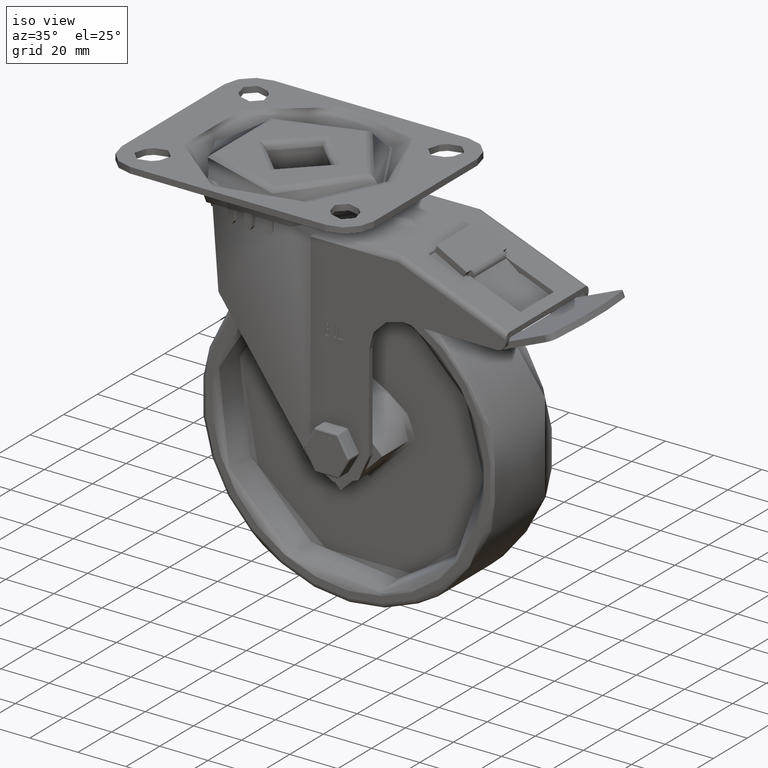
[diagram: clean part render]
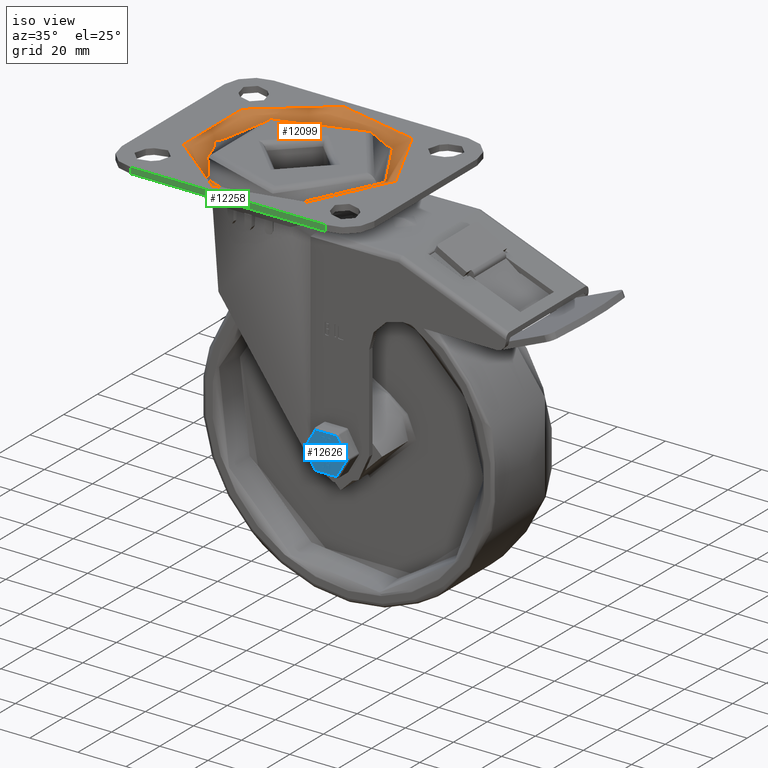
[diagram: same view with three faces highlighted in distinct colors, each labeled with its STEP entity id]
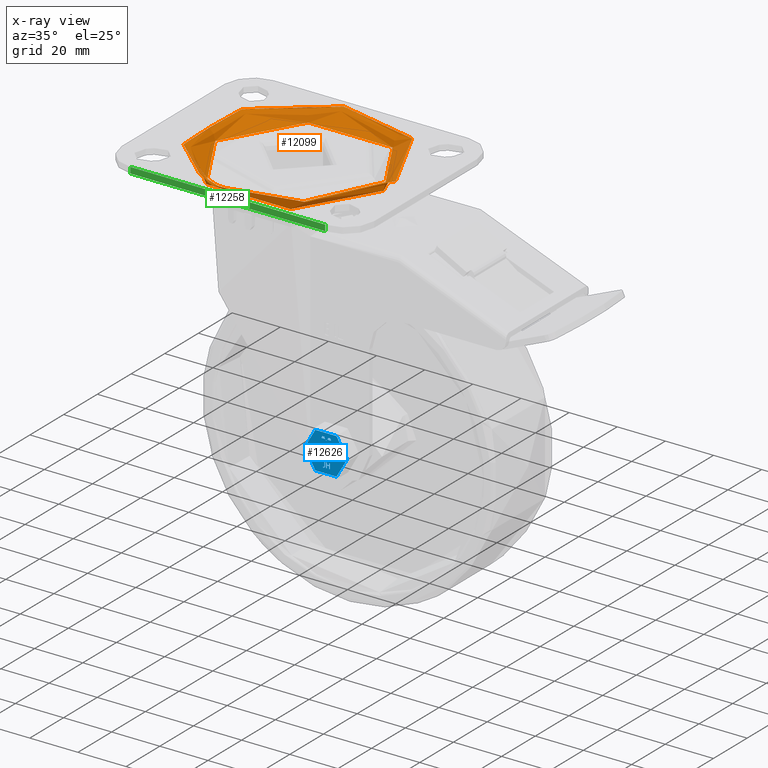
[diagram: x-ray of the same camera — body ghosted, the three highlighted faces saturated]
A machine part, iso view with three faces highlighted in distinct colors.
The next image is the same camera in x-ray (body ghosted, the three faces saturated) — at least one of them is partly hidden behind the body in this view.
Their STEP definitions:

[orange] entity #12099 — the highlighted toroidal blend (fillet) surface has major radius 40 mm and minor (blend) radius 5 mm.
#976=TOROIDAL_SURFACE('',#13022,40.,5.);
#1008=FACE_OUTER_BOUND('',#1702,.T.);
#1702=EDGE_LOOP('',(#8269,#8270,#8271,#8272));
#4787=CIRCLE('',#13023,40.);
#4788=CIRCLE('',#13024,5.);
#4789=CIRCLE('',#13025,35.);
#5256=VERTEX_POINT('',#17760);
#5257=VERTEX_POINT('',#17762);
#6435=EDGE_CURVE('',#5256,#5256,#4787,.T.);
#6436=EDGE_CURVE('',#5256,#5257,#4788,.T.);
#6437=EDGE_CURVE('',#5257,#5257,#4789,.T.);
#8269=ORIENTED_EDGE('',*,*,#6435,.T.);
#8270=ORIENTED_EDGE('',*,*,#6436,.T.);
#8271=ORIENTED_EDGE('',*,*,#6437,.T.);
#8272=ORIENTED_EDGE('',*,*,#6436,.F.);
#12099=ADVANCED_FACE('',(#1008),#976,.T.);
#13022=AXIS2_PLACEMENT_3D('',#17759,#14267,#14268);
#13023=AXIS2_PLACEMENT_3D('',#17761,#14269,#14270);
#13024=AXIS2_PLACEMENT_3D('',#17763,#14271,#14272);
#13025=AXIS2_PLACEMENT_3D('',#17764,#14273,#14274);
#14267=DIRECTION('center_axis',(0.,0.,-1.));
#14268=DIRECTION('ref_axis',(-1.,0.,0.));
#14269=DIRECTION('center_axis',(0.,0.,1.));
#14270=DIRECTION('ref_axis',(1.,1.22464679914735E-16,0.));
#14271=DIRECTION('center_axis',(-1.22464679914735E-16,-1.,0.));
#14272=DIRECTION('ref_axis',(1.,-1.22464679914735E-16,0.));
#14273=DIRECTION('center_axis',(6.53866449118381E-17,0.,-1.));
#14274=DIRECTION('ref_axis',(-1.,0.,-6.53866449118381E-17));
#17759=CARTESIAN_POINT('Origin',(1.63670789225912E-16,0.,-2.5));
#17760=CARTESIAN_POINT('',(40.,4.89858719658941E-15,2.5));
#17761=CARTESIAN_POINT('Origin',(1.63670789225912E-16,0.,2.5));
#17762=CARTESIAN_POINT('',(35.,4.28626379701574E-15,-2.49999999999993));
#17763=CARTESIAN_POINT('Origin',(40.,-4.89858719658941E-15,-2.5));
#17764=CARTESIAN_POINT('Origin',(1.63670789225907E-16,0.,-2.49999999999993));

[blue] entity #12626 — the highlighted planar face has unit normal (0, -1, -0).
#387=B_SPLINE_CURVE_WITH_KNOTS('',2,(#28683,#28684,#28685,#28686),
 .UNSPECIFIED.,.F.,.F.,(3,1,3),(0.,1.,2.),.UNSPECIFIED.);
#388=B_SPLINE_CURVE_WITH_KNOTS('',2,(#28688,#28689,#28690,#28691),
 .UNSPECIFIED.,.F.,.F.,(3,1,3),(0.,1.,2.),.UNSPECIFIED.);
#389=B_SPLINE_CURVE_WITH_KNOTS('',2,(#28695,#28696,#28697,#28698,#28699,
#28700),.UNSPECIFIED.,.F.,.F.,(3,1,1,1,3),(0.,1.,1.99999999999993,3.00827912477809,
4.01655824955625),.UNSPECIFIED.);
#390=B_SPLINE_CURVE_WITH_KNOTS('',2,(#28708,#28709,#28710,#28711,#28712,
#28713),.UNSPECIFIED.,.F.,.F.,(3,1,1,1,3),(0.,1.,1.99999999999993,3.00768321512988,
4.01536643025982),.UNSPECIFIED.);
#391=B_SPLINE_CURVE_WITH_KNOTS('',2,(#28717,#28718,#28719,#28720,#28721,
#28722),.UNSPECIFIED.,.F.,.F.,(3,1,1,1,3),(0.,1.,2.,2.99231678486998,3.98463356973996),
 .UNSPECIFIED.);
#392=B_SPLINE_CURVE_WITH_KNOTS('',2,(#28730,#28731,#28732,#28733),
 .UNSPECIFIED.,.F.,.F.,(3,1,3),(0.,1.,2.),.UNSPECIFIED.);
#393=B_SPLINE_CURVE_WITH_KNOTS('',2,(#28735,#28736,#28737,#28738),
 .UNSPECIFIED.,.F.,.F.,(3,1,3),(0.,1.,2.),.UNSPECIFIED.);
#394=B_SPLINE_CURVE_WITH_KNOTS('',2,(#28742,#28743,#28744,#28745,#28746,
#28747),.UNSPECIFIED.,.F.,.F.,(3,1,1,1,3),(0.,1.,2.,3.,3.99999999999994),
 .UNSPECIFIED.);
#395=B_SPLINE_CURVE_WITH_KNOTS('',2,(#28751,#28752,#28753,#28754,#28755,
#28756),.UNSPECIFIED.,.F.,.F.,(3,1,1,1,3),(0.,1.,2.,2.99163179916309,3.9832635983261),
 .UNSPECIFIED.);
#396=B_SPLINE_CURVE_WITH_KNOTS('',2,(#28760,#28761,#28762,#28763,#28764),
 .UNSPECIFIED.,.F.,.F.,(3,1,1,3),(0.,1.,2.,4.05874673629229),
 .UNSPECIFIED.);
#397=B_SPLINE_CURVE_WITH_KNOTS('',2,(#28768,#28769,#28770,#28771,#28772,
#28773,#28774,#28775,#28776,#28777,#28778,#28779,#28780,#28781),
 .UNSPECIFIED.,.F.,.F.,(3,1,1,1,1,1,1,1,1,1,1,1,3),(2.59332633308433,3.61650351907507,
4.63968070506577,5.65864108781717,6.67760147056856,7.68779660271567,8.6979917348628,
9.70400510123522,10.7100184676076,11.7252012266423,12.7403839856769,13.760110982666,
14.7798379796551),.UNSPECIFIED.);
#398=B_SPLINE_CURVE_WITH_KNOTS('',2,(#28783,#28784,#28785,#28786),
 .UNSPECIFIED.,.F.,.F.,(3,1,3),(14.7798379796551,14.9307861439262,14.955344591428),
 .UNSPECIFIED.);
#399=B_SPLINE_CURVE_WITH_KNOTS('',2,(#28788,#28789,#28790,#28791),
 .UNSPECIFIED.,.F.,.F.,(3,1,3),(0.835721234285714,1.,1.99999999999999),
 .UNSPECIFIED.);
#400=B_SPLINE_CURVE_WITH_KNOTS('',2,(#28793,#28794,#28795,#28796),
 .UNSPECIFIED.,.F.,.F.,(3,1,3),(1.99999999999999,8.88381706859683,15.7676341371938),
 .UNSPECIFIED.);
#401=B_SPLINE_CURVE_WITH_KNOTS('',2,(#28800,#28801,#28802,#28803,#28804,
#28805,#28806,#28807,#28808,#28809),.UNSPECIFIED.,.F.,.F.,(3,1,1,1,1,1,
1,1,3),(0.,1.,2.00000000000003,2.99139784946242,3.98279569892482,4.97798530244519,
5.97317490596557,6.97743524805971,7.98169559015383),.UNSPECIFIED.);
#402=B_SPLINE_CURVE_WITH_KNOTS('',2,(#28813,#28814,#28815,#28816),
 .UNSPECIFIED.,.F.,.F.,(3,1,3),(0.,1.,2.),.UNSPECIFIED.);
#403=B_SPLINE_CURVE_WITH_KNOTS('',2,(#28818,#28819,#28820,#28821),
 .UNSPECIFIED.,.F.,.F.,(3,1,3),(2.,2.14802801604429,2.1720950892248),
 .UNSPECIFIED.);
#404=B_SPLINE_CURVE_WITH_KNOTS('',2,(#28822,#28823,#28824,#28825),
 .UNSPECIFIED.,.F.,.F.,(3,1,3),(2.42039523109711,2.44469118258646,2.59332633308433),
 .UNSPECIFIED.);
#405=B_SPLINE_CURVE_WITH_KNOTS('',2,(#28828,#28829,#28830,#28831,#28832,
#28833),.UNSPECIFIED.,.F.,.F.,(3,1,1,1,3),(0.,1.,2.,3.00768321513003,4.0153664302601),
 .UNSPECIFIED.);
#406=B_SPLINE_CURVE_WITH_KNOTS('',2,(#28837,#28838,#28839,#28840,#28841,
#28842),.UNSPECIFIED.,.F.,.F.,(3,1,1,1,3),(0.,1.,1.99999999999996,2.9923167848699,
3.98463356973985),.UNSPECIFIED.);
#407=B_SPLINE_CURVE_WITH_KNOTS('',2,(#28846,#28847,#28848,#28849,#28850,
#28851,#28852,#28853,#28854,#28855,#28856,#28857,#28858,#28859),
 .UNSPECIFIED.,.F.,.F.,(3,1,1,1,1,1,1,1,1,1,1,1,3),(2.59332633308434,3.6165035190751,
4.63968070506582,5.65864108781724,6.67760147056865,7.68779660271578,8.69799173486291,
9.70400510123534,10.7100184676078,11.7252012266424,12.7403839856771,13.7601109826662,
14.7798379796553),.UNSPECIFIED.);
#408=B_SPLINE_CURVE_WITH_KNOTS('',2,(#28861,#28862,#28863,#28864),
 .UNSPECIFIED.,.F.,.F.,(3,1,3),(14.7798379796553,14.9307861439264,14.9553445914282),
 .UNSPECIFIED.);
#409=B_SPLINE_CURVE_WITH_KNOTS('',2,(#28866,#28867,#28868,#28869),
 .UNSPECIFIED.,.F.,.F.,(3,1,3),(0.835721234285862,1.,2.00000000000001),
 .UNSPECIFIED.);
#410=B_SPLINE_CURVE_WITH_KNOTS('',2,(#28871,#28872,#28873,#28874),
 .UNSPECIFIED.,.F.,.F.,(3,1,3),(2.00000000000001,8.88381706859695,15.7676341371941),
 .UNSPECIFIED.);
#411=B_SPLINE_CURVE_WITH_KNOTS('',2,(#28878,#28879,#28880,#28881,#28882,
#28883,#28884,#28885,#28886,#28887),.UNSPECIFIED.,.F.,.F.,(3,1,1,1,1,1,
1,1,3),(0.,1.,2.00000000000003,2.99139784946242,3.98279569892483,4.97798530244519,
5.97317490596557,6.97743524805971,7.98169559015383),.UNSPECIFIED.);
#412=B_SPLINE_CURVE_WITH_KNOTS('',2,(#28891,#28892,#28893,#28894),
 .UNSPECIFIED.,.F.,.F.,(3,1,3),(0.,1.,2.),.UNSPECIFIED.);
#413=B_SPLINE_CURVE_WITH_KNOTS('',2,(#28896,#28897,#28898,#28899),
 .UNSPECIFIED.,.F.,.F.,(3,1,3),(2.,2.14802801604429,2.17209508922479),
 .UNSPECIFIED.);
#414=B_SPLINE_CURVE_WITH_KNOTS('',2,(#28900,#28901,#28902,#28903),
 .UNSPECIFIED.,.F.,.F.,(3,1,3),(2.42039523109713,2.44469118258647,2.59332633308434),
 .UNSPECIFIED.);
#582=FACE_BOUND('',#2286,.T.);
#583=FACE_BOUND('',#2287,.T.);
#584=FACE_BOUND('',#2288,.T.);
#585=FACE_BOUND('',#2289,.T.);
#586=FACE_BOUND('',#2290,.T.);
#909=PLANE('',#13926);
#1535=FACE_OUTER_BOUND('',#2285,.T.);
#2285=EDGE_LOOP('',(#11181,#11182,#11183,#11184,#11185,#11186));
#2286=EDGE_LOOP('',(#11187,#11188,#11189,#11190,#11191,#11192,#11193,#11194,
#11195,#11196,#11197,#11198,#11199));
#2287=EDGE_LOOP('',(#11200,#11201,#11202,#11203,#11204,#11205,#11206,#11207,
#11208));
#2288=EDGE_LOOP('',(#11209,#11210,#11211,#11212,#11213,#11214,#11215,#11216,
#11217,#11218));
#2289=EDGE_LOOP('',(#11219,#11220,#11221,#11222));
#2290=EDGE_LOOP('',(#11223,#11224,#11225,#11226,#11227,#11228,#11229,#11230,
#11231,#11232));
#3430=LINE('',#28671,#4583);
#3431=LINE('',#28673,#4584);
#3432=LINE('',#28675,#4585);
#3433=LINE('',#28677,#4586);
#3434=LINE('',#28679,#4587);
#3435=LINE('',#28680,#4588);
#3436=LINE('',#28693,#4589);
#3437=LINE('',#28702,#4590);
#3438=LINE('',#28704,#4591);
#3439=LINE('',#28706,#4592);
#3440=LINE('',#28715,#4593);
#3441=LINE('',#28724,#4594);
#3442=LINE('',#28726,#4595);
#3443=LINE('',#28727,#4596);
#3444=LINE('',#28740,#4597);
#3445=LINE('',#28749,#4598);
#3446=LINE('',#28758,#4599);
#3447=LINE('',#28765,#4600);
#3448=LINE('',#28798,#4601);
#3449=LINE('',#28811,#4602);
#3450=LINE('',#28835,#4603);
#3451=LINE('',#28843,#4604);
#3452=LINE('',#28876,#4605);
#3453=LINE('',#28889,#4606);
#4583=VECTOR('',#17032,1000.);
#4584=VECTOR('',#17033,1000.);
#4585=VECTOR('',#17034,1000.);
#4586=VECTOR('',#17035,1000.);
#4587=VECTOR('',#17036,1000.);
#4588=VECTOR('',#17037,1000.);
#4589=VECTOR('',#17038,1000.);
#4590=VECTOR('',#17039,1000.);
#4591=VECTOR('',#17040,1000.);
#4592=VECTOR('',#17041,1000.);
#4593=VECTOR('',#17042,1000.);
#4594=VECTOR('',#17043,1000.);
#4595=VECTOR('',#17044,1000.);
#4596=VECTOR('',#17045,1000.);
#4597=VECTOR('',#17046,1000.);
#4598=VECTOR('',#17047,1000.);
#4599=VECTOR('',#17048,1000.);
#4600=VECTOR('',#17049,1000.);
#4601=VECTOR('',#17050,1000.);
#4602=VECTOR('',#17051,1000.);
#4603=VECTOR('',#17052,1000.);
#4604=VECTOR('',#17053,1000.);
#4605=VECTOR('',#17054,1000.);
#4606=VECTOR('',#17055,1000.);
#6186=VERTEX_POINT('',#28669);
#6187=VERTEX_POINT('',#28670);
#6188=VERTEX_POINT('',#28672);
#6189=VERTEX_POINT('',#28674);
#6190=VERTEX_POINT('',#28676);
#6191=VERTEX_POINT('',#28678);
#6192=VERTEX_POINT('',#28681);
#6193=VERTEX_POINT('',#28682);
#6194=VERTEX_POINT('',#28687);
#6195=VERTEX_POINT('',#28692);
#6196=VERTEX_POINT('',#28694);
#6197=VERTEX_POINT('',#28701);
#6198=VERTEX_POINT('',#28703);
#6199=VERTEX_POINT('',#28705);
#6200=VERTEX_POINT('',#28707);
#6201=VERTEX_POINT('',#28714);
#6202=VERTEX_POINT('',#28716);
#6203=VERTEX_POINT('',#28723);
#6204=VERTEX_POINT('',#28725);
#6205=VERTEX_POINT('',#28728);
#6206=VERTEX_POINT('',#28729);
#6207=VERTEX_POINT('',#28734);
#6208=VERTEX_POINT('',#28739);
#6209=VERTEX_POINT('',#28741);
#6210=VERTEX_POINT('',#28748);
#6211=VERTEX_POINT('',#28750);
#6212=VERTEX_POINT('',#28757);
#6213=VERTEX_POINT('',#28759);
#6214=VERTEX_POINT('',#28766);
#6215=VERTEX_POINT('',#28767);
#6216=VERTEX_POINT('',#28782);
#6217=VERTEX_POINT('',#28787);
#6218=VERTEX_POINT('',#28792);
#6219=VERTEX_POINT('',#28797);
#6220=VERTEX_POINT('',#28799);
#6221=VERTEX_POINT('',#28810);
#6222=VERTEX_POINT('',#28812);
#6223=VERTEX_POINT('',#28817);
#6224=VERTEX_POINT('',#28826);
#6225=VERTEX_POINT('',#28827);
#6226=VERTEX_POINT('',#28834);
#6227=VERTEX_POINT('',#28836);
#6228=VERTEX_POINT('',#28844);
#6229=VERTEX_POINT('',#28845);
#6230=VERTEX_POINT('',#28860);
#6231=VERTEX_POINT('',#28865);
#6232=VERTEX_POINT('',#28870);
#6233=VERTEX_POINT('',#28875);
#6234=VERTEX_POINT('',#28877);
#6235=VERTEX_POINT('',#28888);
#6236=VERTEX_POINT('',#28890);
#6237=VERTEX_POINT('',#28895);
#7877=EDGE_CURVE('',#6186,#6187,#3430,.T.);
#7878=EDGE_CURVE('',#6188,#6186,#3431,.T.);
#7879=EDGE_CURVE('',#6189,#6188,#3432,.T.);
#7880=EDGE_CURVE('',#6190,#6189,#3433,.T.);
#7881=EDGE_CURVE('',#6191,#6190,#3434,.T.);
#7882=EDGE_CURVE('',#6187,#6191,#3435,.T.);
#7883=EDGE_CURVE('',#6192,#6193,#387,.T.);
#7884=EDGE_CURVE('',#6193,#6194,#388,.T.);
#7885=EDGE_CURVE('',#6194,#6195,#3436,.T.);
#7886=EDGE_CURVE('',#6195,#6196,#389,.T.);
#7887=EDGE_CURVE('',#6196,#6197,#3437,.T.);
#7888=EDGE_CURVE('',#6197,#6198,#3438,.T.);
#7889=EDGE_CURVE('',#6198,#6199,#3439,.T.);
#7890=EDGE_CURVE('',#6199,#6200,#390,.T.);
#7891=EDGE_CURVE('',#6200,#6201,#3440,.T.);
#7892=EDGE_CURVE('',#6201,#6202,#391,.T.);
#7893=EDGE_CURVE('',#6202,#6203,#3441,.T.);
#7894=EDGE_CURVE('',#6203,#6204,#3442,.T.);
#7895=EDGE_CURVE('',#6204,#6192,#3443,.T.);
#7896=EDGE_CURVE('',#6205,#6206,#392,.T.);
#7897=EDGE_CURVE('',#6206,#6207,#393,.T.);
#7898=EDGE_CURVE('',#6207,#6208,#3444,.T.);
#7899=EDGE_CURVE('',#6208,#6209,#394,.T.);
#7900=EDGE_CURVE('',#6209,#6210,#3445,.T.);
#7901=EDGE_CURVE('',#6210,#6211,#395,.T.);
#7902=EDGE_CURVE('',#6211,#6212,#3446,.T.);
#7903=EDGE_CURVE('',#6212,#6213,#396,.T.);
#7904=EDGE_CURVE('',#6213,#6205,#3447,.T.);
#7905=EDGE_CURVE('',#6214,#6215,#397,.T.);
#7906=EDGE_CURVE('',#6215,#6216,#398,.T.);
#7907=EDGE_CURVE('',#6216,#6217,#399,.T.);
#7908=EDGE_CURVE('',#6217,#6218,#400,.T.);
#7909=EDGE_CURVE('',#6218,#6219,#3448,.T.);
#7910=EDGE_CURVE('',#6219,#6220,#401,.T.);
#7911=EDGE_CURVE('',#6220,#6221,#3449,.T.);
#7912=EDGE_CURVE('',#6221,#6222,#402,.T.);
#7913=EDGE_CURVE('',#6222,#6223,#403,.T.);
#7914=EDGE_CURVE('',#6223,#6214,#404,.T.);
#7915=EDGE_CURVE('',#6224,#6225,#405,.T.);
#7916=EDGE_CURVE('',#6225,#6226,#3450,.T.);
#7917=EDGE_CURVE('',#6226,#6227,#406,.T.);
#7918=EDGE_CURVE('',#6227,#6224,#3451,.T.);
#7919=EDGE_CURVE('',#6228,#6229,#407,.T.);
#7920=EDGE_CURVE('',#6229,#6230,#408,.T.);
#7921=EDGE_CURVE('',#6230,#6231,#409,.T.);
#7922=EDGE_CURVE('',#6231,#6232,#410,.T.);
#7923=EDGE_CURVE('',#6232,#6233,#3452,.T.);
#7924=EDGE_CURVE('',#6233,#6234,#411,.T.);
#7925=EDGE_CURVE('',#6234,#6235,#3453,.T.);
#7926=EDGE_CURVE('',#6235,#6236,#412,.T.);
#7927=EDGE_CURVE('',#6236,#6237,#413,.T.);
#7928=EDGE_CURVE('',#6237,#6228,#414,.T.);
#11181=ORIENTED_EDGE('',*,*,#7877,.F.);
#11182=ORIENTED_EDGE('',*,*,#7878,.F.);
#11183=ORIENTED_EDGE('',*,*,#7879,.F.);
#11184=ORIENTED_EDGE('',*,*,#7880,.F.);
#11185=ORIENTED_EDGE('',*,*,#7881,.F.);
#11186=ORIENTED_EDGE('',*,*,#7882,.F.);
#11187=ORIENTED_EDGE('',*,*,#7883,.T.);
#11188=ORIENTED_EDGE('',*,*,#7884,.T.);
#11189=ORIENTED_EDGE('',*,*,#7885,.T.);
#11190=ORIENTED_EDGE('',*,*,#7886,.T.);
#11191=ORIENTED_EDGE('',*,*,#7887,.T.);
#11192=ORIENTED_EDGE('',*,*,#7888,.T.);
#11193=ORIENTED_EDGE('',*,*,#7889,.T.);
#11194=ORIENTED_EDGE('',*,*,#7890,.T.);
#11195=ORIENTED_EDGE('',*,*,#7891,.T.);
#11196=ORIENTED_EDGE('',*,*,#7892,.T.);
#11197=ORIENTED_EDGE('',*,*,#7893,.T.);
#11198=ORIENTED_EDGE('',*,*,#7894,.T.);
#11199=ORIENTED_EDGE('',*,*,#7895,.T.);
#11200=ORIENTED_EDGE('',*,*,#7896,.T.);
#11201=ORIENTED_EDGE('',*,*,#7897,.T.);
#11202=ORIENTED_EDGE('',*,*,#7898,.T.);
#11203=ORIENTED_EDGE('',*,*,#7899,.T.);
#11204=ORIENTED_EDGE('',*,*,#7900,.T.);
#11205=ORIENTED_EDGE('',*,*,#7901,.T.);
#11206=ORIENTED_EDGE('',*,*,#7902,.T.);
#11207=ORIENTED_EDGE('',*,*,#7903,.T.);
#11208=ORIENTED_EDGE('',*,*,#7904,.T.);
#11209=ORIENTED_EDGE('',*,*,#7905,.T.);
#11210=ORIENTED_EDGE('',*,*,#7906,.T.);
#11211=ORIENTED_EDGE('',*,*,#7907,.T.);
#11212=ORIENTED_EDGE('',*,*,#7908,.T.);
#11213=ORIENTED_EDGE('',*,*,#7909,.T.);
#11214=ORIENTED_EDGE('',*,*,#7910,.T.);
#11215=ORIENTED_EDGE('',*,*,#7911,.T.);
#11216=ORIENTED_EDGE('',*,*,#7912,.T.);
#11217=ORIENTED_EDGE('',*,*,#7913,.T.);
#11218=ORIENTED_EDGE('',*,*,#7914,.T.);
#11219=ORIENTED_EDGE('',*,*,#7915,.T.);
#11220=ORIENTED_EDGE('',*,*,#7916,.T.);
#11221=ORIENTED_EDGE('',*,*,#7917,.T.);
#11222=ORIENTED_EDGE('',*,*,#7918,.T.);
#11223=ORIENTED_EDGE('',*,*,#7919,.T.);
#11224=ORIENTED_EDGE('',*,*,#7920,.T.);
#11225=ORIENTED_EDGE('',*,*,#7921,.T.);
#11226=ORIENTED_EDGE('',*,*,#7922,.T.);
#11227=ORIENTED_EDGE('',*,*,#7923,.T.);
#11228=ORIENTED_EDGE('',*,*,#7924,.T.);
#11229=ORIENTED_EDGE('',*,*,#7925,.T.);
#11230=ORIENTED_EDGE('',*,*,#7926,.T.);
#11231=ORIENTED_EDGE('',*,*,#7927,.T.);
#11232=ORIENTED_EDGE('',*,*,#7928,.T.);
#12626=ADVANCED_FACE('',(#1535,#582,#583,#584,#585,#586),#909,.T.);
#13926=AXIS2_PLACEMENT_3D('',#28668,#17030,#17031);
#17030=DIRECTION('center_axis',(0.,-1.,-3.49148336110938E-15));
#17031=DIRECTION('ref_axis',(1.,0.,0.));
#17032=DIRECTION('',(1.,1.8789157342003E-30,-5.38142542831221E-16));
#17033=DIRECTION('',(0.5,-3.0237132876114E-15,0.866025403784439));
#17034=DIRECTION('',(-0.5,-3.0237132876114E-15,0.866025403784439));
#17035=DIRECTION('',(-1.,-1.25261048946687E-30,3.58761695220814E-16));
#17036=DIRECTION('',(-0.5,3.0237132876114E-15,-0.866025403784439));
#17037=DIRECTION('',(0.499999999999999,3.0237132876114E-15,-0.866025403784439));
#17038=DIRECTION('',(0.,3.49148336110938E-15,-1.));
#17039=DIRECTION('',(0.,-3.49148336110938E-15,1.));
#17040=DIRECTION('',(-1.,0.,0.));
#17041=DIRECTION('',(0.,3.49148336110938E-15,-1.));
#17042=DIRECTION('',(0.,-3.49148336110938E-15,1.));
#17043=DIRECTION('',(0.,3.49148336110938E-15,-1.));
#17044=DIRECTION('',(1.,0.,0.));
#17045=DIRECTION('',(0.,-3.49148336110938E-15,1.));
#17046=DIRECTION('',(0.,3.49148336110938E-15,-1.));
#17047=DIRECTION('',(-1.,0.,0.));
#17048=DIRECTION('',(1.,0.,0.));
#17049=DIRECTION('',(0.,-3.49148336110938E-15,1.));
#17050=DIRECTION('',(0.,3.49148336110938E-15,-1.));
#17051=DIRECTION('',(0.,-3.49148336110938E-15,1.));
#17052=DIRECTION('',(0.,-3.49148336110938E-15,1.));
#17053=DIRECTION('',(0.,3.49148336110938E-15,-1.));
#17054=DIRECTION('',(0.,3.49148336110938E-15,-1.));
#17055=DIRECTION('',(0.,-3.49148336110938E-15,1.));
#28668=CARTESIAN_POINT('Origin',(0.,-33.23,-33.2300000000001));
#28669=CARTESIAN_POINT('',(-4.4022958025709,-33.23,-25.6050000000001));
#28670=CARTESIAN_POINT('',(4.4022958025709,-33.23,-25.6050000000001));
#28671=CARTESIAN_POINT('',(2.28354585997652E-15,-33.23,-25.6050000000001));
#28672=CARTESIAN_POINT('',(-8.80459160514179,-33.23,-33.2300000000001));
#28673=CARTESIAN_POINT('',(-6.60344370385634,-33.23,-29.4175000000001));
#28674=CARTESIAN_POINT('',(-4.4022958025709,-33.23,-40.8550000000001));
#28675=CARTESIAN_POINT('',(-6.60344370385635,-33.23,-37.0425000000001));
#28676=CARTESIAN_POINT('',(4.40229580257089,-33.23,-40.8550000000001));
#28677=CARTESIAN_POINT('',(-2.10060506530995E-15,-33.23,-40.8550000000001));
#28678=CARTESIAN_POINT('',(8.80459160514179,-33.23,-33.2300000000001));
#28679=CARTESIAN_POINT('',(6.60344370385634,-33.23,-37.0425000000001));
#28680=CARTESIAN_POINT('',(6.60344370385635,-33.23,-29.4175000000001));
#28681=CARTESIAN_POINT('',(1.32731053178271,-33.23,-36.586332135036));
#28682=CARTESIAN_POINT('',(1.48262908617913,-33.23,-36.432255508111));
#28683=CARTESIAN_POINT('Ctrl Pts',(1.32731053178271,-33.23,-36.586332135036));
#28684=CARTESIAN_POINT('Ctrl Pts',(1.32731053178271,-33.23,-36.5219071474553));
#28685=CARTESIAN_POINT('Ctrl Pts',(1.41696217112697,-33.23,-36.432255508111));
#28686=CARTESIAN_POINT('Ctrl Pts',(1.48262908617913,-33.23,-36.432255508111));
#28687=CARTESIAN_POINT('',(1.63790883034207,-33.23,-36.586332135036));
#28688=CARTESIAN_POINT('Ctrl Pts',(1.48262908617913,-33.23,-36.432255508111));
#28689=CARTESIAN_POINT('Ctrl Pts',(1.54775265796254,-33.23,-36.432255508111));
#28690=CARTESIAN_POINT('Ctrl Pts',(1.63790883034207,-33.23,-36.5224116804905));
#28691=CARTESIAN_POINT('Ctrl Pts',(1.63790883034207,-33.23,-36.586332135036));
#28692=CARTESIAN_POINT('',(1.63790883034207,-33.23,-38.778178881186));
#28693=CARTESIAN_POINT('',(1.63790883034207,-33.23,-34.908166067518));
#28694=CARTESIAN_POINT('',(1.32731053178271,-33.23,-38.778178881186));
#28695=CARTESIAN_POINT('Ctrl Pts',(1.63790883034207,-33.23,-38.778178881186));
#28696=CARTESIAN_POINT('Ctrl Pts',(1.63790883034207,-33.23,-38.8426038687667));
#28697=CARTESIAN_POINT('Ctrl Pts',(1.54825719099781,-33.23,-38.932255508111));
#28698=CARTESIAN_POINT('Ctrl Pts',(1.4164576380917,-33.23,-38.932255508111));
#28699=CARTESIAN_POINT('Ctrl Pts',(1.32731053178271,-33.23,-38.843108401802));
#28700=CARTESIAN_POINT('Ctrl Pts',(1.32731053178271,-33.23,-38.778178881186));
#28701=CARTESIAN_POINT('',(1.32731053178271,-33.23,-37.7145456223683));
#28702=CARTESIAN_POINT('',(1.32731053178271,-33.23,-36.0040894405931));
#28703=CARTESIAN_POINT('',(0.420198944599399,-33.23,-37.7145456223683));
#28704=CARTESIAN_POINT('',(0.663655265891354,-33.23,-37.7145456223683));
#28705=CARTESIAN_POINT('',(0.420198944599399,-33.23,-38.778178881186));
#28706=CARTESIAN_POINT('',(0.420198944599399,-33.23,-35.4722728111842));
#28707=CARTESIAN_POINT('',(0.109600646040035,-33.23,-38.778178881186));
#28708=CARTESIAN_POINT('Ctrl Pts',(0.420198944599399,-33.23,-38.778178881186));
#28709=CARTESIAN_POINT('Ctrl Pts',(0.420198944599399,-33.23,-38.8426038687667));
#28710=CARTESIAN_POINT('Ctrl Pts',(0.330586115488619,-33.23,-38.932255508111));
#28711=CARTESIAN_POINT('Ctrl Pts',(0.198747752349027,-33.23,-38.932255508111));
#28712=CARTESIAN_POINT('Ctrl Pts',(0.109600646040035,-33.23,-38.843108401802));
#28713=CARTESIAN_POINT('Ctrl Pts',(0.109600646040035,-33.23,-38.778178881186));
#28714=CARTESIAN_POINT('',(0.109600646040035,-33.23,-36.586332135036));
#28715=CARTESIAN_POINT('',(0.109600646040035,-33.23,-36.0040894405931));
#28716=CARTESIAN_POINT('',(0.420198944599399,-33.23,-36.586332135036));
#28717=CARTESIAN_POINT('Ctrl Pts',(0.109600646040035,-33.23,-36.586332135036));
#28718=CARTESIAN_POINT('Ctrl Pts',(0.109600646040035,-33.23,-36.5219071474553));
#28719=CARTESIAN_POINT('Ctrl Pts',(0.199252285384297,-33.23,-36.432255508111));
#28720=CARTESIAN_POINT('Ctrl Pts',(0.330081582453349,-33.23,-36.432255508111));
#28721=CARTESIAN_POINT('Ctrl Pts',(0.420198944599399,-33.23,-36.5224116804905));
#28722=CARTESIAN_POINT('Ctrl Pts',(0.420198944599399,-33.23,-36.586332135036));
#28723=CARTESIAN_POINT('',(0.420198944599399,-33.23,-37.4064311787518));
#28724=CARTESIAN_POINT('',(0.420198944599399,-33.23,-34.908166067518));
#28725=CARTESIAN_POINT('',(1.32731053178271,-33.23,-37.4064311787518));
#28726=CARTESIAN_POINT('',(0.2100994722997,-33.23,-37.4064311787518));
#28727=CARTESIAN_POINT('',(1.32731053178271,-33.23,-35.318215589376));
#28728=CARTESIAN_POINT('',(-0.652554719086641,-33.23,-36.586332135036));
#28729=CARTESIAN_POINT('',(-0.497274974923701,-33.23,-36.432255508111));
#28730=CARTESIAN_POINT('Ctrl Pts',(-0.652554719086641,-33.23,-36.586332135036));
#28731=CARTESIAN_POINT('Ctrl Pts',(-0.652554719086641,-33.23,-36.5219071474553));
#28732=CARTESIAN_POINT('Ctrl Pts',(-0.562941889975861,-33.23,-36.432255508111));
#28733=CARTESIAN_POINT('Ctrl Pts',(-0.497274974923701,-33.23,-36.432255508111));
#28734=CARTESIAN_POINT('',(-0.341956420527277,-33.23,-36.586332135036));
#28735=CARTESIAN_POINT('Ctrl Pts',(-0.497274974923701,-33.23,-36.432255508111));
#28736=CARTESIAN_POINT('Ctrl Pts',(-0.43211259290681,-33.23,-36.432255508111));
#28737=CARTESIAN_POINT('Ctrl Pts',(-0.341956420527277,-33.23,-36.5224116804905));
#28738=CARTESIAN_POINT('Ctrl Pts',(-0.341956420527277,-33.23,-36.586332135036));
#28739=CARTESIAN_POINT('',(-0.341956420527277,-33.23,-38.41289696365));
#28740=CARTESIAN_POINT('',(-0.341956420527277,-33.23,-34.908166067518));
#28741=CARTESIAN_POINT('',(-0.862556892459716,-33.23,-38.932255508111));
#28742=CARTESIAN_POINT('Ctrl Pts',(-0.341956420527277,-33.23,-38.41289696365));
#28743=CARTESIAN_POINT('Ctrl Pts',(-0.341956420527277,-33.23,-38.5186548498894));
#28744=CARTESIAN_POINT('Ctrl Pts',(-0.425592473681773,-33.23,-38.7094847679222));
#28745=CARTESIAN_POINT('Ctrl Pts',(-0.564843591416497,-33.23,-38.8487358856569));
#28746=CARTESIAN_POINT('Ctrl Pts',(-0.755401837814907,-33.23,-38.932255508111));
#28747=CARTESIAN_POINT('Ctrl Pts',(-0.862556892459716,-33.23,-38.932255508111));
#28748=CARTESIAN_POINT('',(-1.22787762022921,-33.23,-38.932255508111));
#28749=CARTESIAN_POINT('',(-0.431278446229858,-33.23,-38.932255508111));
#28750=CARTESIAN_POINT('',(-1.22787762022921,-33.23,-38.6241410644945));
#28751=CARTESIAN_POINT('Ctrl Pts',(-1.22787762022921,-33.23,-38.932255508111));
#28752=CARTESIAN_POINT('Ctrl Pts',(-1.29404906831665,-33.23,-38.932255508111));
#28753=CARTESIAN_POINT('Ctrl Pts',(-1.38319617462564,-33.23,-38.843108401802));
#28754=CARTESIAN_POINT('Ctrl Pts',(-1.38319617462564,-33.23,-38.7137927038388));
#28755=CARTESIAN_POINT('Ctrl Pts',(-1.29354453528138,-33.23,-38.6241410644945));
#28756=CARTESIAN_POINT('Ctrl Pts',(-1.22787762022921,-33.23,-38.6241410644945));
#28757=CARTESIAN_POINT('',(-0.862556892459716,-33.23,-38.6241410644945));
#28758=CARTESIAN_POINT('',(-0.613938810114607,-33.23,-38.6241410644945));
#28759=CARTESIAN_POINT('',(-0.652554719086641,-33.23,-38.41289696365));
#28760=CARTESIAN_POINT('Ctrl Pts',(-0.862556892459716,-33.23,-38.6241410644945));
#28761=CARTESIAN_POINT('Ctrl Pts',(-0.820719460765727,-33.23,-38.6241410644945));
#28762=CARTESIAN_POINT('Ctrl Pts',(-0.743487096135822,-33.23,-38.5928212060742));
#28763=CARTESIAN_POINT('Ctrl Pts',(-0.652554719086641,-33.23,-38.501888829025));
#28764=CARTESIAN_POINT('Ctrl Pts',(-0.652554719086641,-33.23,-38.41289696365));
#28765=CARTESIAN_POINT('',(-0.652554719086641,-33.23,-35.821448481825));
#28766=CARTESIAN_POINT('',(0.917086363874114,-33.23,-27.2202196785034));
#28767=CARTESIAN_POINT('',(1.83087331121639,-33.23,-27.2201420580365));
#28768=CARTESIAN_POINT('Ctrl Pts',(0.917086363874114,-33.23,-27.2202196785034));
#28769=CARTESIAN_POINT('Ctrl Pts',(0.828793082701735,-33.23,-27.1319263973311));
#28770=CARTESIAN_POINT('Ctrl Pts',(0.731806309229306,-33.23,-26.8997247704061));
#28771=CARTESIAN_POINT('Ctrl Pts',(0.731806309229306,-33.23,-26.6365913873956));
#28772=CARTESIAN_POINT('Ctrl Pts',(0.828793082701735,-33.23,-26.4043509502372));
#28773=CARTESIAN_POINT('Ctrl Pts',(1.00848446372508,-33.23,-26.2246595692138));
#28774=CARTESIAN_POINT('Ctrl Pts',(1.24293708419205,-33.23,-26.1267413501378));
#28775=CARTESIAN_POINT('Ctrl Pts',(1.50490616019801,-33.23,-26.1267413501378));
#28776=CARTESIAN_POINT('Ctrl Pts',(1.73943640113194,-33.23,-26.2246983794473));
#28777=CARTESIAN_POINT('Ctrl Pts',(1.9190889719218,-33.23,-26.4043509502372));
#28778=CARTESIAN_POINT('Ctrl Pts',(2.0165802784295,-33.23,-26.6378333148671));
#28779=CARTESIAN_POINT('Ctrl Pts',(2.0165802784295,-33.23,-26.8985216531681));
#28780=CARTESIAN_POINT('Ctrl Pts',(1.9190889719218,-33.23,-27.1319263973311));
#28781=CARTESIAN_POINT('Ctrl Pts',(1.83087331121639,-33.23,-27.2201420580365));
#28782=CARTESIAN_POINT('',(1.79137953934869,-33.23,-27.2552199663062));
#28783=CARTESIAN_POINT('Ctrl Pts',(1.83087331121639,-33.23,-27.2201420580365));
#28784=CARTESIAN_POINT('Ctrl Pts',(1.81686281692926,-33.23,-27.232173230416));
#28785=CARTESIAN_POINT('Ctrl Pts',(1.79416521961439,-33.23,-27.2531109742611));
#28786=CARTESIAN_POINT('Ctrl Pts',(1.79137953934867,-33.23,-27.2552199663062));
#28787=CARTESIAN_POINT('',(1.83079569074942,-33.23,-27.2902333397056));
#28788=CARTESIAN_POINT('Ctrl Pts',(1.79137953934849,-33.23,-27.255219966306));
#28789=CARTESIAN_POINT('Ctrl Pts',(1.79419916284154,-33.23,-27.2573557920387));
#28790=CARTESIAN_POINT('Ctrl Pts',(1.81701805786319,-33.23,-27.278435028727));
#28791=CARTESIAN_POINT('Ctrl Pts',(1.83079569074942,-33.23,-27.2902333397056));
#28792=CARTESIAN_POINT('',(2.0165802784295,-33.23,-27.7420620779073));
#28793=CARTESIAN_POINT('Ctrl Pts',(1.83079569074942,-33.23,-27.2902333397056));
#28794=CARTESIAN_POINT('Ctrl Pts',(1.9190889719218,-33.23,-27.378526620878));
#28795=CARTESIAN_POINT('Ctrl Pts',(2.0165802784295,-33.23,-27.6120089855079));
#28796=CARTESIAN_POINT('Ctrl Pts',(2.0165802784295,-33.23,-27.7420620779073));
#28797=CARTESIAN_POINT('',(2.0165802784295,-33.23,-27.9855962930092));
#28798=CARTESIAN_POINT('',(2.0165802784295,-33.23,-30.4860310389537));
#28799=CARTESIAN_POINT('',(0.731806309229306,-33.23,-27.9855962930092));
#28800=CARTESIAN_POINT('Ctrl Pts',(2.0165802784295,-33.23,-27.9855962930092));
#28801=CARTESIAN_POINT('Ctrl Pts',(2.0165802784295,-33.23,-28.1161927286773));
#28802=CARTESIAN_POINT('Ctrl Pts',(1.9190889719218,-33.23,-28.3496362830737));
#28803=CARTESIAN_POINT('Ctrl Pts',(1.73939759089846,-33.23,-28.5293276640971));
#28804=CARTESIAN_POINT('Ctrl Pts',(1.50610927743596,-33.23,-28.6267413501378));
#28805=CARTESIAN_POINT('Ctrl Pts',(1.24177277718758,-33.23,-28.6267413501378));
#28806=CARTESIAN_POINT('Ctrl Pts',(1.0084456534916,-33.23,-28.5292888538636));
#28807=CARTESIAN_POINT('Ctrl Pts',(0.828793082701735,-33.23,-28.3496362830737));
#28808=CARTESIAN_POINT('Ctrl Pts',(0.731806309229306,-33.23,-28.1173958459153));
#28809=CARTESIAN_POINT('Ctrl Pts',(0.731806309229306,-33.23,-27.9855962930092));
#28810=CARTESIAN_POINT('',(0.731806309229306,-33.23,-27.7420620779073));
#28811=CARTESIAN_POINT('',(0.731806309229306,-33.23,-30.6077981465046));
#28812=CARTESIAN_POINT('',(0.91700874340715,-33.23,-27.2903109601726));
#28813=CARTESIAN_POINT('Ctrl Pts',(0.731806309229306,-33.23,-27.7420620779073));
#28814=CARTESIAN_POINT('Ctrl Pts',(0.731806309229306,-33.23,-27.6107670580365));
#28815=CARTESIAN_POINT('Ctrl Pts',(0.828793082701735,-33.23,-27.378526620878));
#28816=CARTESIAN_POINT('Ctrl Pts',(0.91700874340715,-33.23,-27.2903109601726));
#28817=CARTESIAN_POINT('',(0.956512085162513,-33.23,-27.2552096759202));
#28818=CARTESIAN_POINT('Ctrl Pts',(0.91700874340715,-33.23,-27.2903109601726));
#28819=CARTESIAN_POINT('Ctrl Pts',(0.931019237694283,-33.23,-27.2782797877931));
#28820=CARTESIAN_POINT('Ctrl Pts',(0.953714687775624,-33.23,-27.2573214646066));
#28821=CARTESIAN_POINT('Ctrl Pts',(0.956512085162444,-33.23,-27.2552096759202));
#28822=CARTESIAN_POINT('Ctrl Pts',(0.956512085162609,-33.23,-27.2552096759202));
#28823=CARTESIAN_POINT('Ctrl Pts',(0.95368942830413,-33.23,-27.2530824085032));
#28824=CARTESIAN_POINT('Ctrl Pts',(0.930863996760354,-33.23,-27.2320179894821));
#28825=CARTESIAN_POINT('Ctrl Pts',(0.917086363874114,-33.23,-27.2202196785034));
#28826=CARTESIAN_POINT('',(0.294764269984397,-33.23,-28.4726647232128));
#28827=CARTESIAN_POINT('',(-0.0158340285749668,-33.23,-28.4726647232128));
#28828=CARTESIAN_POINT('Ctrl Pts',(0.294764269984397,-33.23,-28.4726647232128));
#28829=CARTESIAN_POINT('Ctrl Pts',(0.294764269984397,-33.23,-28.5370897107936));
#28830=CARTESIAN_POINT('Ctrl Pts',(0.205151440873617,-33.23,-28.6267413501378));
#28831=CARTESIAN_POINT('Ctrl Pts',(0.0733130777340247,-33.23,-28.6267413501378));
#28832=CARTESIAN_POINT('Ctrl Pts',(-0.0158340285749668,-33.23,-28.5375942438288));
#28833=CARTESIAN_POINT('Ctrl Pts',(-0.0158340285749668,-33.23,-28.4726647232128));
#28834=CARTESIAN_POINT('',(-0.0158340285749668,-33.23,-28.3509170207787));
#28835=CARTESIAN_POINT('',(-0.0158340285749668,-33.23,-30.8513323616065));
#28836=CARTESIAN_POINT('',(0.294764269984397,-33.23,-28.3509170207787));
#28837=CARTESIAN_POINT('Ctrl Pts',(-0.0158340285749668,-33.23,-28.3509170207787));
#28838=CARTESIAN_POINT('Ctrl Pts',(-0.0158340285749668,-33.23,-28.2864920331979));
#28839=CARTESIAN_POINT('Ctrl Pts',(0.0738176107692953,-33.23,-28.1968403938537));
#28840=CARTESIAN_POINT('Ctrl Pts',(0.204646907838347,-33.23,-28.1968403938537));
#28841=CARTESIAN_POINT('Ctrl Pts',(0.294764269984397,-33.23,-28.2869965662332));
#28842=CARTESIAN_POINT('Ctrl Pts',(0.294764269984397,-33.23,-28.3509170207787));
#28843=CARTESIAN_POINT('',(0.294764269984397,-33.23,-30.7904585103894));
#28844=CARTESIAN_POINT('',(-1.57173628888296,-33.23,-27.2202196785034));
#28845=CARTESIAN_POINT('',(-0.65794934154069,-33.23,-27.2201420580365));
#28846=CARTESIAN_POINT('Ctrl Pts',(-1.57173628888296,-33.23,-27.2202196785034));
#28847=CARTESIAN_POINT('Ctrl Pts',(-1.66002957005534,-33.23,-27.1319263973311));
#28848=CARTESIAN_POINT('Ctrl Pts',(-1.75701634352777,-33.23,-26.8997247704061));
#28849=CARTESIAN_POINT('Ctrl Pts',(-1.75701634352777,-33.23,-26.6365913873956));
#28850=CARTESIAN_POINT('Ctrl Pts',(-1.66002957005534,-33.23,-26.4043509502372));
#28851=CARTESIAN_POINT('Ctrl Pts',(-1.480338189032,-33.23,-26.2246595692138));
#28852=CARTESIAN_POINT('Ctrl Pts',(-1.24588556856503,-33.23,-26.1267413501378));
#28853=CARTESIAN_POINT('Ctrl Pts',(-0.98391649255907,-33.23,-26.1267413501378));
#28854=CARTESIAN_POINT('Ctrl Pts',(-0.749386251625141,-33.23,-26.2246983794473));
#28855=CARTESIAN_POINT('Ctrl Pts',(-0.569733680835275,-33.23,-26.4043509502372));
#28856=CARTESIAN_POINT('Ctrl Pts',(-0.472242374327575,-33.23,-26.6378333148671));
#28857=CARTESIAN_POINT('Ctrl Pts',(-0.472242374327575,-33.23,-26.8985216531681));
#28858=CARTESIAN_POINT('Ctrl Pts',(-0.569733680835275,-33.23,-27.1319263973311));
#28859=CARTESIAN_POINT('Ctrl Pts',(-0.65794934154069,-33.23,-27.2201420580365));
#28860=CARTESIAN_POINT('',(-0.697443113408385,-33.23,-27.2552199663062));
#28861=CARTESIAN_POINT('Ctrl Pts',(-0.65794934154069,-33.23,-27.2201420580365));
#28862=CARTESIAN_POINT('Ctrl Pts',(-0.671959835827823,-33.23,-27.232173230416));
#28863=CARTESIAN_POINT('Ctrl Pts',(-0.694657433142689,-33.23,-27.2531109742611));
#28864=CARTESIAN_POINT('Ctrl Pts',(-0.697443113408406,-33.23,-27.2552199663062));
#28865=CARTESIAN_POINT('',(-0.658026962007654,-33.23,-27.2902333397056));
#28866=CARTESIAN_POINT('Ctrl Pts',(-0.697443113408588,-33.23,-27.255219966306));
#28867=CARTESIAN_POINT('Ctrl Pts',(-0.694623489915536,-33.23,-27.2573557920387));
#28868=CARTESIAN_POINT('Ctrl Pts',(-0.671804594893894,-33.23,-27.278435028727));
#28869=CARTESIAN_POINT('Ctrl Pts',(-0.658026962007654,-33.23,-27.2902333397056));
#28870=CARTESIAN_POINT('',(-0.472242374327575,-33.23,-27.7420620779073));
#28871=CARTESIAN_POINT('Ctrl Pts',(-0.658026962007654,-33.23,-27.2902333397056));
#28872=CARTESIAN_POINT('Ctrl Pts',(-0.569733680835275,-33.23,-27.378526620878));
#28873=CARTESIAN_POINT('Ctrl Pts',(-0.472242374327575,-33.23,-27.6120089855079));
#28874=CARTESIAN_POINT('Ctrl Pts',(-0.472242374327575,-33.23,-27.7420620779073));
#28875=CARTESIAN_POINT('',(-0.472242374327575,-33.23,-27.9855962930092));
#28876=CARTESIAN_POINT('',(-0.472242374327575,-33.23,-30.4860310389537));
#28877=CARTESIAN_POINT('',(-1.75701634352777,-33.23,-27.9855962930092));
#28878=CARTESIAN_POINT('Ctrl Pts',(-0.472242374327575,-33.23,-27.9855962930092));
#28879=CARTESIAN_POINT('Ctrl Pts',(-0.472242374327575,-33.23,-28.1161927286773));
#28880=CARTESIAN_POINT('Ctrl Pts',(-0.569733680835275,-33.23,-28.3496362830737));
#28881=CARTESIAN_POINT('Ctrl Pts',(-0.749425061858623,-33.23,-28.5293276640971));
#28882=CARTESIAN_POINT('Ctrl Pts',(-0.982713375321117,-33.23,-28.6267413501378));
#28883=CARTESIAN_POINT('Ctrl Pts',(-1.2470498755695,-33.23,-28.6267413501378));
#28884=CARTESIAN_POINT('Ctrl Pts',(-1.48037699926548,-33.23,-28.5292888538636));
#28885=CARTESIAN_POINT('Ctrl Pts',(-1.66002957005534,-33.23,-28.3496362830737));
#28886=CARTESIAN_POINT('Ctrl Pts',(-1.75701634352777,-33.23,-28.1173958459153));
#28887=CARTESIAN_POINT('Ctrl Pts',(-1.75701634352777,-33.23,-27.9855962930092));
#28888=CARTESIAN_POINT('',(-1.75701634352777,-33.23,-27.7420620779073));
#28889=CARTESIAN_POINT('',(-1.75701634352777,-33.23,-30.6077981465046));
#28890=CARTESIAN_POINT('',(-1.57181390934993,-33.23,-27.2903109601726));
#28891=CARTESIAN_POINT('Ctrl Pts',(-1.75701634352777,-33.23,-27.7420620779073));
#28892=CARTESIAN_POINT('Ctrl Pts',(-1.75701634352777,-33.23,-27.6107670580365));
#28893=CARTESIAN_POINT('Ctrl Pts',(-1.66002957005534,-33.23,-27.378526620878));
#28894=CARTESIAN_POINT('Ctrl Pts',(-1.57181390934993,-33.23,-27.2903109601726));
#28895=CARTESIAN_POINT('',(-1.53231056759457,-33.23,-27.2552096759202));
#28896=CARTESIAN_POINT('Ctrl Pts',(-1.57181390934993,-33.23,-27.2903109601726));
#28897=CARTESIAN_POINT('Ctrl Pts',(-1.5578034150628,-33.23,-27.2782797877931));
#28898=CARTESIAN_POINT('Ctrl Pts',(-1.53510796498146,-33.23,-27.2573214646066));
#28899=CARTESIAN_POINT('Ctrl Pts',(-1.53231056759464,-33.23,-27.2552096759202));
#28900=CARTESIAN_POINT('Ctrl Pts',(-1.53231056759447,-33.23,-27.2552096759202));
#28901=CARTESIAN_POINT('Ctrl Pts',(-1.53513322445295,-33.23,-27.2530824085032));
#28902=CARTESIAN_POINT('Ctrl Pts',(-1.55795865599673,-33.23,-27.2320179894821));
#28903=CARTESIAN_POINT('Ctrl Pts',(-1.57173628888296,-33.23,-27.2202196785034));

[green] entity #12258 — the highlighted planar face has unit normal (0, -1, 0).
#702=PLANE('',#13286);
#1167=FACE_OUTER_BOUND('',#1877,.T.);
#1877=EDGE_LOOP('',(#9221,#9222,#9223,#9224));
#2470=LINE('',#17729,#3623);
#2471=LINE('',#17735,#3624);
#2817=LINE('',#18654,#3970);
#2826=LINE('',#18664,#3979);
#3623=VECTOR('',#14232,1000.);
#3624=VECTOR('',#14237,1000.);
#3970=VECTOR('',#15123,1000.);
#3979=VECTOR('',#15134,1000.);
#5242=VERTEX_POINT('',#17722);
#5245=VERTEX_POINT('',#17727);
#5247=VERTEX_POINT('',#17732);
#5248=VERTEX_POINT('',#17734);
#6420=EDGE_CURVE('',#5245,#5242,#2470,.T.);
#6422=EDGE_CURVE('',#5247,#5248,#2471,.T.);
#6882=EDGE_CURVE('',#5242,#5247,#2817,.T.);
#6891=EDGE_CURVE('',#5245,#5248,#2826,.T.);
#9221=ORIENTED_EDGE('',*,*,#6422,.F.);
#9222=ORIENTED_EDGE('',*,*,#6882,.F.);
#9223=ORIENTED_EDGE('',*,*,#6420,.F.);
#9224=ORIENTED_EDGE('',*,*,#6891,.T.);
#12258=ADVANCED_FACE('',(#1167),#702,.T.);
#13286=AXIS2_PLACEMENT_3D('',#18682,#15158,#15159);
#14232=DIRECTION('',(0.,0.,-1.));
#14237=DIRECTION('',(0.,0.,1.));
#15123=DIRECTION('',(-1.,0.,0.));
#15134=DIRECTION('',(-1.,0.,0.));
#15158=DIRECTION('center_axis',(0.,-1.,0.));
#15159=DIRECTION('ref_axis',(1.,0.,0.));
#17722=CARTESIAN_POINT('',(40.5,-42.5,0.));
#17727=CARTESIAN_POINT('',(40.5,-42.5,2.5));
#17729=CARTESIAN_POINT('',(40.5,-42.5,0.));
#17732=CARTESIAN_POINT('',(-40.5,-42.5,0.));
#17734=CARTESIAN_POINT('',(-40.5,-42.5,2.5));
#17735=CARTESIAN_POINT('',(-40.5,-42.5,0.));
#18654=CARTESIAN_POINT('',(52.5,-42.5,0.));
#18664=CARTESIAN_POINT('',(52.5,-42.5,2.5));
#18682=CARTESIAN_POINT('Origin',(0.,-42.5,0.));